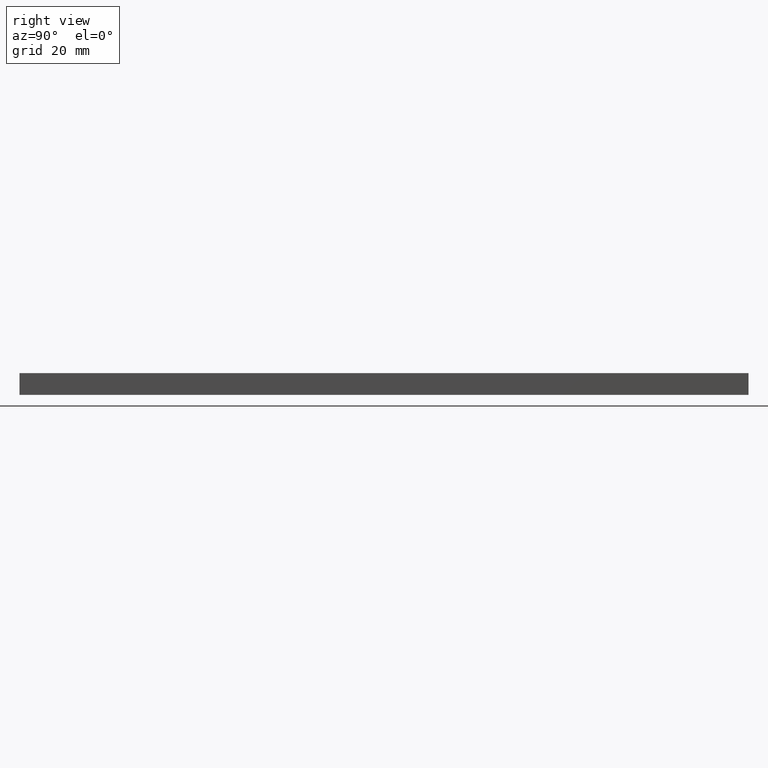
[diagram: clean part render]
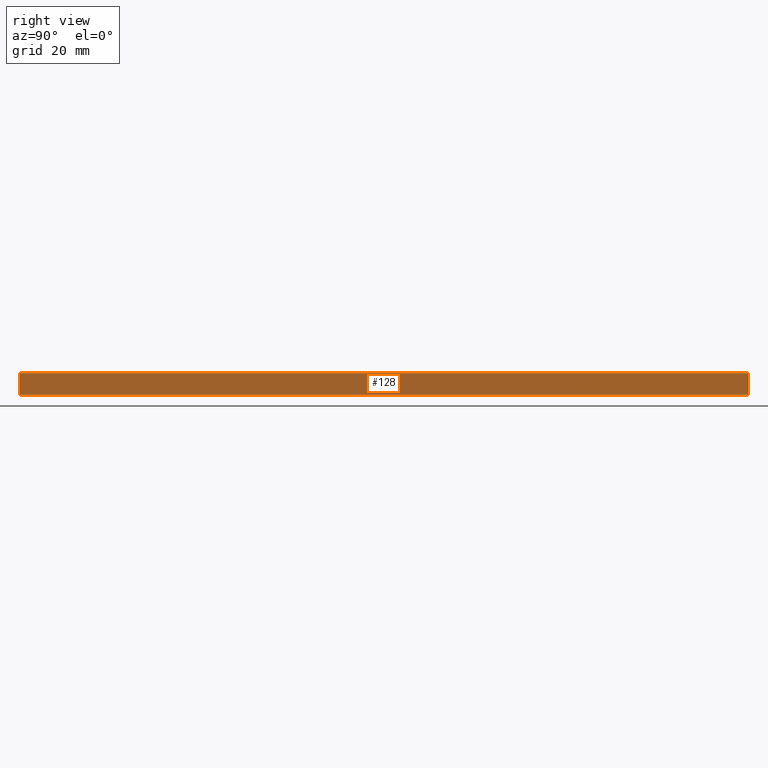
[diagram: same view with one face highlighted and labeled with its STEP entity id]
A machine part, right view. The second image highlights one B-rep face of the part: STEP entity #128.
In plain terms, the highlighted face is a freeform B-spline surface patch.
Its self-contained STEP definition (entity closure, byte-faithful):
#12=CARTESIAN_POINT('',(15.0,0.0,6.0));
#13=VERTEX_POINT('',#12);
#26=CARTESIAN_POINT('',(15.0,0.0,0.0));
#27=VERTEX_POINT('',#26);
#33=CARTESIAN_POINT('',(15.0,0.0,6.0));
#34=CARTESIAN_POINT('',(15.0,0.0,0.0));
#35=QUASI_UNIFORM_CURVE('',1,(#33,#34),.UNSPECIFIED.,.F.,.U.);
#36=EDGE_CURVE('',#13,#27,#35,.T.);
#48=CARTESIAN_POINT('',(15.0,200.0,6.0));
#49=VERTEX_POINT('',#48);
#55=CARTESIAN_POINT('',(15.0,200.0,0.0));
#56=VERTEX_POINT('',#55);
#57=CARTESIAN_POINT('',(15.0,200.0,6.0));
#58=CARTESIAN_POINT('',(15.0,200.0,0.0));
#59=QUASI_UNIFORM_CURVE('',1,(#57,#58),.UNSPECIFIED.,.F.,.U.);
#60=EDGE_CURVE('',#49,#56,#59,.T.);
#105=CARTESIAN_POINT('',(15.0,200.0,0.0));
#106=CARTESIAN_POINT('',(15.0,0.0,0.0));
#107=QUASI_UNIFORM_CURVE('',1,(#105,#106),.UNSPECIFIED.,.F.,.U.);
#108=EDGE_CURVE('',#56,#27,#107,.T.);
#113=CARTESIAN_POINT('',(15.0,-9.989999612361171,-0.299699988370836));
#114=CARTESIAN_POINT('',(15.0,-9.989999612361171,6.299700149303376));
#115=CARTESIAN_POINT('',(15.0,209.990004976779200,-0.299699988370836));
#116=CARTESIAN_POINT('',(15.0,209.990004976779200,6.299700149303376));
#117=B_SPLINE_SURFACE_WITH_KNOTS('',1,1,((#113,#115),(#114,#116)),.UNSPECIFIED.,.F.,.F.,.U.,(2,2),(2,2),(0.0,6.599400137674212),(0.0,219.980004589140410),.UNSPECIFIED.);
#118=ORIENTED_EDGE('',*,*,#36,.T.);
#119=ORIENTED_EDGE('',*,*,#108,.F.);
#120=ORIENTED_EDGE('',*,*,#60,.F.);
#121=CARTESIAN_POINT('',(15.0,200.0,6.0));
#122=CARTESIAN_POINT('',(15.0,0.0,6.0));
#123=QUASI_UNIFORM_CURVE('',1,(#121,#122),.UNSPECIFIED.,.F.,.U.);
#124=EDGE_CURVE('',#49,#13,#123,.T.);
#125=ORIENTED_EDGE('',*,*,#124,.T.);
#126=EDGE_LOOP('',(#118,#119,#120,#125));
#127=FACE_OUTER_BOUND('',#126,.T.);
#128=ADVANCED_FACE('',(#127),#117,.F.);